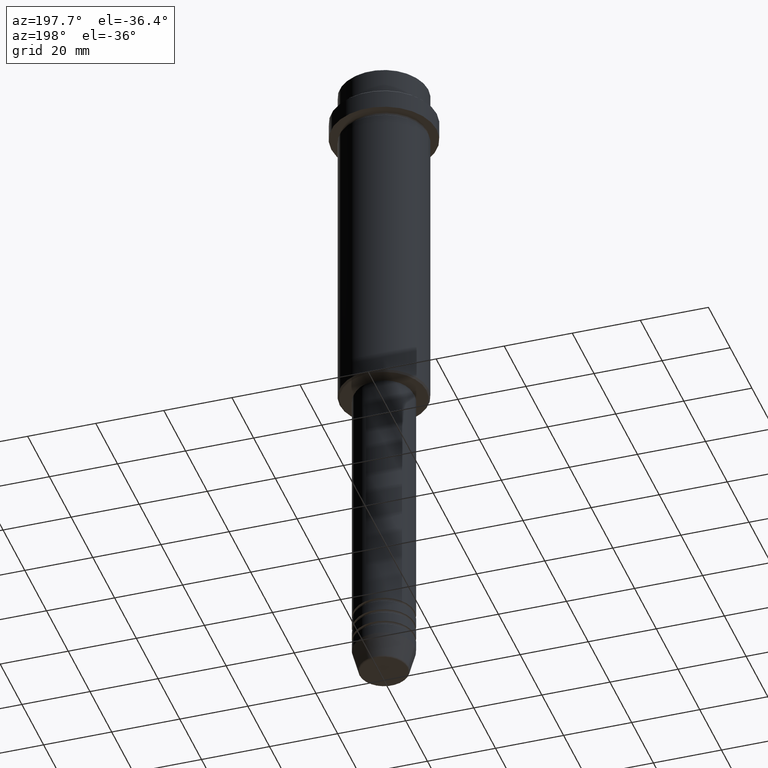
[diagram: clean part render]
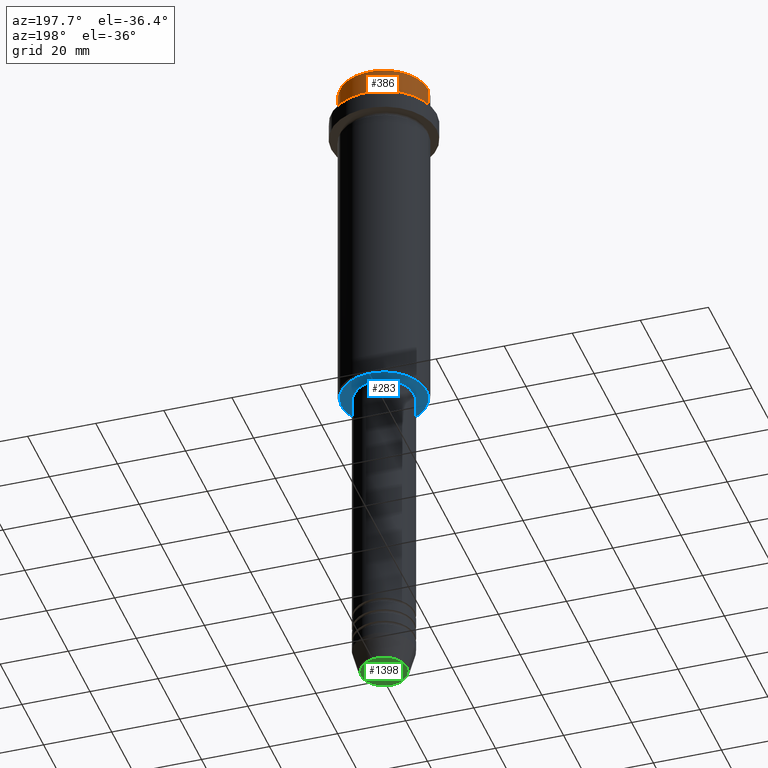
[diagram: same view with three faces highlighted in distinct colors, each labeled with its STEP entity id]
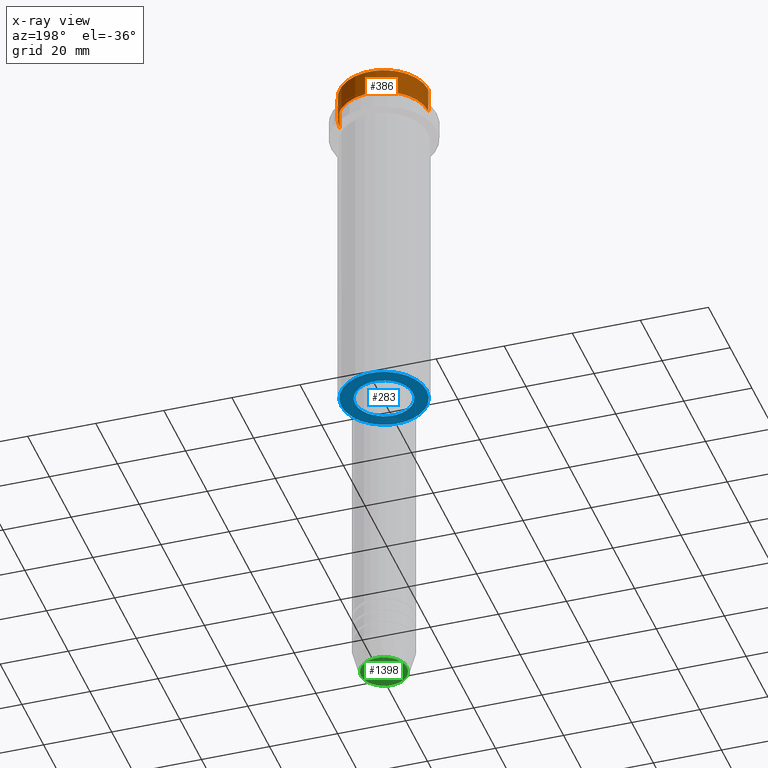
[diagram: x-ray of the same camera — body ghosted, the three highlighted faces saturated]
A machine part, auxiliary view with three faces highlighted in distinct colors.
The next image is the same camera in x-ray (body ghosted, the three faces saturated) — at least one of them is partly hidden behind the body in this view.
Their STEP definitions:

[orange] entity #386 — the highlighted cylindrical surface (partial cylindrical patch) has radius 13 mm, axis along (-0, -0, 1).
#14 = CIRCLE ( 'NONE', #509, 12.99999999999999822 ) ;
#18 = ORIENTED_EDGE ( 'NONE', *, *, #1096, .F. ) ;
#34 = CARTESIAN_POINT ( 'NONE',  ( 0.000000000000000000, 0.000000000000000000, -7.999999999999998224 ) ) ;
#77 = DIRECTION ( 'NONE',  ( -0.000000000000000000, -0.000000000000000000, 1.000000000000000000 ) ) ;
#156 = FACE_OUTER_BOUND ( 'NONE', #968, .T. ) ;
#180 = CARTESIAN_POINT ( 'NONE',  ( 0.000000000000000000, 0.000000000000000000, 0.000000000000000000 ) ) ;
#216 = CARTESIAN_POINT ( 'NONE',  ( 0.000000000000000000, 0.000000000000000000, -0.5000000000000037748 ) ) ;
#312 = VERTEX_POINT ( 'NONE', #646 ) ;
#339 = DIRECTION ( 'NONE',  ( 1.000000000000000000, 0.000000000000000000, 0.000000000000000000 ) ) ;
#365 = VERTEX_POINT ( 'NONE', #848 ) ;
#386 = ADVANCED_FACE ( 'NONE', ( #156 ), #1155, .T. ) ;
#442 = ORIENTED_EDGE ( 'NONE', *, *, #527, .T. ) ;
#446 = CIRCLE ( 'NONE', #1018, 12.99999999999999822 ) ;
#450 = DIRECTION ( 'NONE',  ( -0.000000000000000000, -0.000000000000000000, 1.000000000000000000 ) ) ;
#470 = LINE ( 'NONE', #815, #776 ) ;
#509 = AXIS2_PLACEMENT_3D ( 'NONE', #216, #1208, #1315 ) ;
#527 = EDGE_CURVE ( 'NONE', #365, #312, #446, .T. ) ;
#619 = VERTEX_POINT ( 'NONE', #1262 ) ;
#646 = CARTESIAN_POINT ( 'NONE',  ( -12.99999999999999822, 1.592040838891558898E-15, -7.999999999999998224 ) ) ;
#764 = LINE ( 'NONE', #1056, #1134 ) ;
#776 = VECTOR ( 'NONE', #930, 1000.000000000000000 ) ;
#815 = CARTESIAN_POINT ( 'NONE',  ( 12.99999999999999822, 0.000000000000000000, 0.000000000000000000 ) ) ;
#827 = EDGE_CURVE ( 'NONE', #312, #1396, #764, .T. ) ;
#848 = CARTESIAN_POINT ( 'NONE',  ( 12.99999999999999822, 0.000000000000000000, -7.999999999999998224 ) ) ;
#868 = DIRECTION ( 'NONE',  ( 1.000000000000000000, 0.000000000000000000, 0.000000000000000000 ) ) ;
#930 = DIRECTION ( 'NONE',  ( -0.000000000000000000, -0.000000000000000000, 1.000000000000000000 ) ) ;
#947 = AXIS2_PLACEMENT_3D ( 'NONE', #180, #450, #868 ) ;
#968 = EDGE_LOOP ( 'NONE', ( #442, #1257, #1144, #18 ) ) ;
#1018 = AXIS2_PLACEMENT_3D ( 'NONE', #34, #1103, #339 ) ;
#1056 = CARTESIAN_POINT ( 'NONE',  ( -12.99999999999999822, 1.592040838891558898E-15, 0.000000000000000000 ) ) ;
#1086 = CARTESIAN_POINT ( 'NONE',  ( -12.99999999999999822, 1.592040838891558898E-15, -0.5000000000000037748 ) ) ;
#1096 = EDGE_CURVE ( 'NONE', #365, #619, #470, .T. ) ;
#1103 = DIRECTION ( 'NONE',  ( -0.000000000000000000, -0.000000000000000000, 1.000000000000000000 ) ) ;
#1134 = VECTOR ( 'NONE', #77, 1000.000000000000000 ) ;
#1144 = ORIENTED_EDGE ( 'NONE', *, *, #1380, .T. ) ;
#1155 = CYLINDRICAL_SURFACE ( 'NONE', #947, 12.99999999999999822 ) ;
#1208 = DIRECTION ( 'NONE',  ( 0.000000000000000000, 0.000000000000000000, -1.000000000000000000 ) ) ;
#1257 = ORIENTED_EDGE ( 'NONE', *, *, #827, .T. ) ;
#1262 = CARTESIAN_POINT ( 'NONE',  ( 12.99999999999999822, 0.000000000000000000, -0.5000000000000037748 ) ) ;
#1315 = DIRECTION ( 'NONE',  ( 1.000000000000000000, 0.000000000000000000, 0.000000000000000000 ) ) ;
#1380 = EDGE_CURVE ( 'NONE', #1396, #619, #14, .T. ) ;
#1396 = VERTEX_POINT ( 'NONE', #1086 ) ;

[blue] entity #283 — the highlighted planar face has unit normal (0, 0, -1).
#8 = CARTESIAN_POINT ( 'NONE',  ( -8.499999999999994671, 1.040949779275249745E-15, -105.0000000000000142 ) ) ;
#105 = CARTESIAN_POINT ( 'NONE',  ( 0.000000000000000000, 0.000000000000000000, -105.0000000000000142 ) ) ;
#198 = AXIS2_PLACEMENT_3D ( 'NONE', #973, #317, #763 ) ;
#200 = CIRCLE ( 'NONE', #1042, 8.499999999999994671 ) ;
#211 = PLANE ( 'NONE',  #198 ) ;
#230 = CARTESIAN_POINT ( 'NONE',  ( 8.499999999999994671, 0.000000000000000000, -105.0000000000000142 ) ) ;
#258 = DIRECTION ( 'NONE',  ( 1.000000000000000000, 0.000000000000000000, 0.000000000000000000 ) ) ;
#280 = CARTESIAN_POINT ( 'NONE',  ( -12.50000000000001066, 1.561424668912876097E-15, -105.0000000000000142 ) ) ;
#283 = ADVANCED_FACE ( 'NONE', ( #415, #733 ), #211, .T. ) ;
#287 = ORIENTED_EDGE ( 'NONE', *, *, #1405, .T. ) ;
#298 = DIRECTION ( 'NONE',  ( 0.000000000000000000, 0.000000000000000000, -1.000000000000000000 ) ) ;
#313 = EDGE_CURVE ( 'NONE', #486, #560, #326, .T. ) ;
#317 = DIRECTION ( 'NONE',  ( 0.000000000000000000, 0.000000000000000000, -1.000000000000000000 ) ) ;
#326 = CIRCLE ( 'NONE', #1386, 12.50000000000001066 ) ;
#415 = FACE_OUTER_BOUND ( 'NONE', #1016, .T. ) ;
#464 = ORIENTED_EDGE ( 'NONE', *, *, #313, .T. ) ;
#486 = VERTEX_POINT ( 'NONE', #894 ) ;
#542 = CARTESIAN_POINT ( 'NONE',  ( 0.000000000000000000, 0.000000000000000000, -105.0000000000000142 ) ) ;
#551 = VERTEX_POINT ( 'NONE', #230 ) ;
#560 = VERTEX_POINT ( 'NONE', #280 ) ;
#561 = AXIS2_PLACEMENT_3D ( 'NONE', #1194, #880, #874 ) ;
#622 = ORIENTED_EDGE ( 'NONE', *, *, #636, .T. ) ;
#628 = CIRCLE ( 'NONE', #1363, 8.499999999999994671 ) ;
#636 = EDGE_CURVE ( 'NONE', #916, #551, #200, .T. ) ;
#658 = DIRECTION ( 'NONE',  ( 1.000000000000000000, 0.000000000000000000, 0.000000000000000000 ) ) ;
#733 = FACE_BOUND ( 'NONE', #1383, .T. ) ;
#763 = DIRECTION ( 'NONE',  ( -1.000000000000000000, 0.000000000000000000, -0.000000000000000000 ) ) ;
#874 = DIRECTION ( 'NONE',  ( -1.000000000000000000, 0.000000000000000000, 0.000000000000000000 ) ) ;
#880 = DIRECTION ( 'NONE',  ( 0.000000000000000000, 0.000000000000000000, -1.000000000000000000 ) ) ;
#882 = ORIENTED_EDGE ( 'NONE', *, *, #1370, .T. ) ;
#894 = CARTESIAN_POINT ( 'NONE',  ( 12.50000000000001066, 0.000000000000000000, -105.0000000000000142 ) ) ;
#916 = VERTEX_POINT ( 'NONE', #8 ) ;
#973 = CARTESIAN_POINT ( 'NONE',  ( 0.000000000000000000, 13.00000000000000000, -105.0000000000000142 ) ) ;
#983 = DIRECTION ( 'NONE',  ( -0.000000000000000000, -0.000000000000000000, 1.000000000000000000 ) ) ;
#1016 = EDGE_LOOP ( 'NONE', ( #464, #882 ) ) ;
#1042 = AXIS2_PLACEMENT_3D ( 'NONE', #1139, #1162, #258 ) ;
#1076 = DIRECTION ( 'NONE',  ( -1.000000000000000000, 0.000000000000000000, 0.000000000000000000 ) ) ;
#1139 = CARTESIAN_POINT ( 'NONE',  ( 0.000000000000000000, 0.000000000000000000, -105.0000000000000142 ) ) ;
#1162 = DIRECTION ( 'NONE',  ( -0.000000000000000000, -0.000000000000000000, 1.000000000000000000 ) ) ;
#1176 = CIRCLE ( 'NONE', #561, 12.50000000000001066 ) ;
#1194 = CARTESIAN_POINT ( 'NONE',  ( 0.000000000000000000, 0.000000000000000000, -105.0000000000000142 ) ) ;
#1363 = AXIS2_PLACEMENT_3D ( 'NONE', #542, #983, #658 ) ;
#1370 = EDGE_CURVE ( 'NONE', #560, #486, #1176, .T. ) ;
#1383 = EDGE_LOOP ( 'NONE', ( #287, #622 ) ) ;
#1386 = AXIS2_PLACEMENT_3D ( 'NONE', #105, #298, #1076 ) ;
#1405 = EDGE_CURVE ( 'NONE', #551, #916, #628, .T. ) ;

[green] entity #1398 — the highlighted planar face has unit normal (0, -0, 1).
#109 = FACE_OUTER_BOUND ( 'NONE', #1290, .T. ) ;
#132 = CARTESIAN_POINT ( 'NONE',  ( 6.740692158992658278, 0.000000000000000000, -200.0000000000000000 ) ) ;
#151 = VERTEX_POINT ( 'NONE', #810 ) ;
#195 = ORIENTED_EDGE ( 'NONE', *, *, #1233, .T. ) ;
#245 = DIRECTION ( 'NONE',  ( 0.000000000000000000, -0.000000000000000000, 1.000000000000000000 ) ) ;
#295 = DIRECTION ( 'NONE',  ( 1.000000000000000000, 0.000000000000000000, 0.000000000000000000 ) ) ;
#309 = CARTESIAN_POINT ( 'NONE',  ( 0.000000000000000000, 0.000000000000000000, -200.0000000000000000 ) ) ;
#565 = CIRCLE ( 'NONE', #1253, 6.740692158992658278 ) ;
#810 = CARTESIAN_POINT ( 'NONE',  ( -6.740692158992658278, 8.550696569392685681E-16, -200.0000000000000000 ) ) ;
#830 = EDGE_CURVE ( 'NONE', #151, #953, #565, .T. ) ;
#953 = VERTEX_POINT ( 'NONE', #132 ) ;
#959 = CARTESIAN_POINT ( 'NONE',  ( 0.000000000000000000, 0.000000000000000000, -200.0000000000000000 ) ) ;
#1054 = DIRECTION ( 'NONE',  ( 0.000000000000000000, 0.000000000000000000, -1.000000000000000000 ) ) ;
#1105 = PLANE ( 'NONE',  #1250 ) ;
#1114 = DIRECTION ( 'NONE',  ( 1.000000000000000000, 0.000000000000000000, 0.000000000000000000 ) ) ;
#1182 = DIRECTION ( 'NONE',  ( 0.000000000000000000, 0.000000000000000000, -1.000000000000000000 ) ) ;
#1190 = ORIENTED_EDGE ( 'NONE', *, *, #830, .T. ) ;
#1222 = CARTESIAN_POINT ( 'NONE',  ( 0.000000000000000000, 0.000000000000000000, -200.0000000000000000 ) ) ;
#1233 = EDGE_CURVE ( 'NONE', #953, #151, #1368, .T. ) ;
#1250 = AXIS2_PLACEMENT_3D ( 'NONE', #1222, #245, #1114 ) ;
#1253 = AXIS2_PLACEMENT_3D ( 'NONE', #959, #1182, #295 ) ;
#1255 = AXIS2_PLACEMENT_3D ( 'NONE', #309, #1054, #1286 ) ;
#1286 = DIRECTION ( 'NONE',  ( 1.000000000000000000, 0.000000000000000000, 0.000000000000000000 ) ) ;
#1290 = EDGE_LOOP ( 'NONE', ( #195, #1190 ) ) ;
#1368 = CIRCLE ( 'NONE', #1255, 6.740692158992658278 ) ;
#1398 = ADVANCED_FACE ( 'NONE', ( #109 ), #1105, .F. ) ;